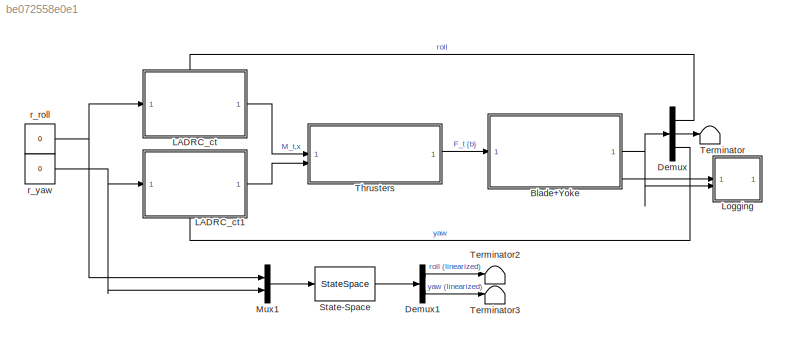
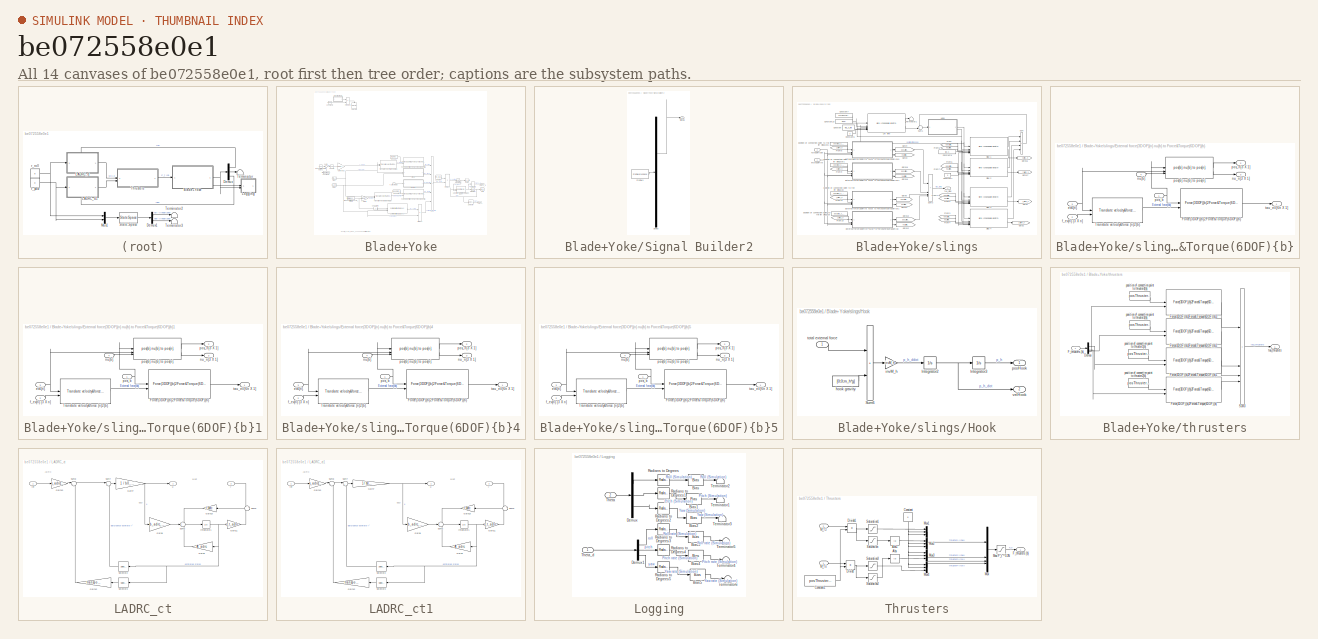
[diagram: thumbnail index - all 14 canvases of the model, root first then tree order]
MODEL slx_be072558e0e1
KIND model
CONFIG AbsTol = auto
CONFIG EnableMultiTasking = off
CONFIG FixedStep = auto
CONFIG MaxStep = 0.02
CONFIG MinStep = auto
CONFIG RelTol = 1e-3
CONFIG SampleTimeConstraint = Unconstrained
CONFIG SolverName = VariableStepAuto
CONFIG StartTime = 0.0
CONFIG StopTime = 100
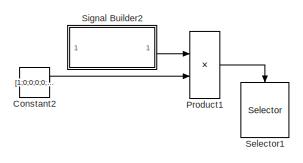
[diagram: Blade+Yoke - part 1/3, top left region]
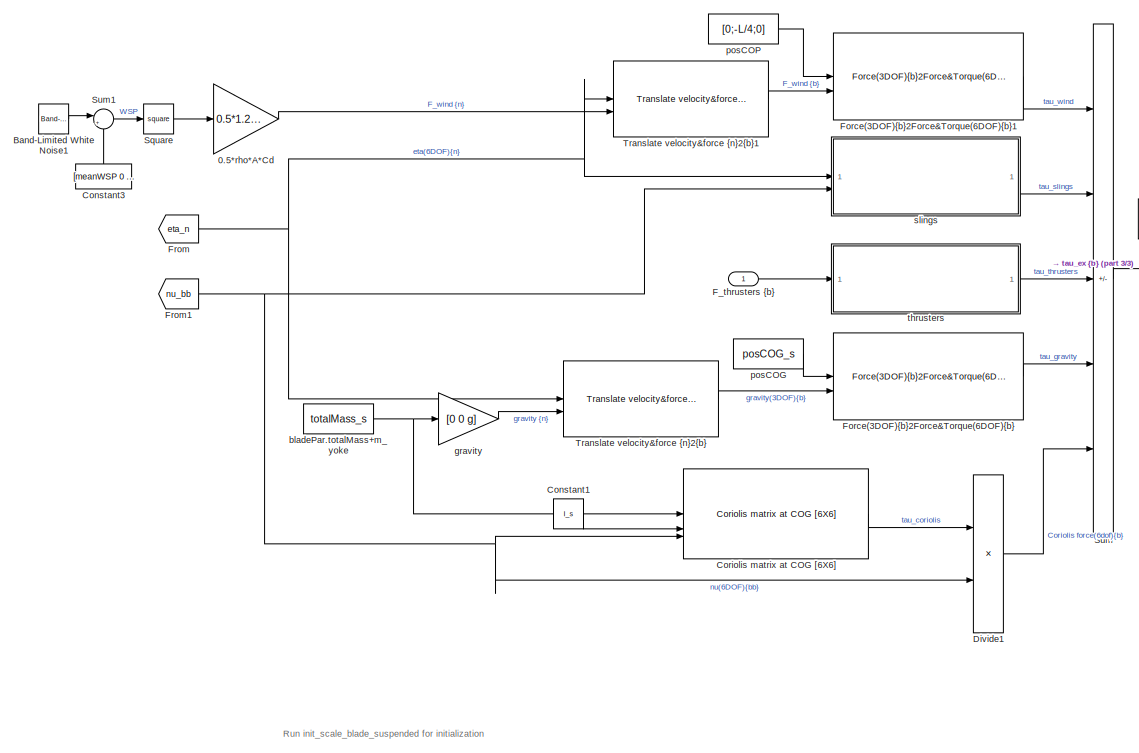
[diagram: Blade+Yoke - part 2/3, bottom center region]
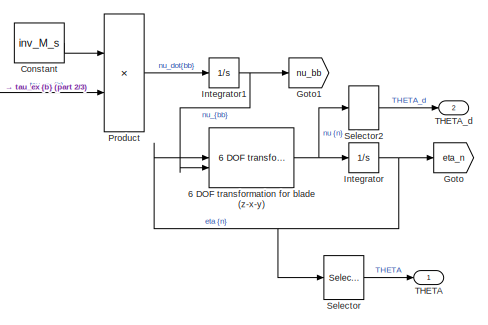
[diagram: Blade+Yoke - part 3/3, bottom right region]
BLOCK [SubSystem] Blade+Yoke
  ShowPortLabels = FromPortBlockName
BLOCK [Gain] Blade+Yoke/0.5*rho*A*Cd
  Gain = 0.5*1.225*W*L*1.05
BLOCK [Reference] Blade+Yoke/6 DOF transformation for blade (z-x-y)  REF=MarIn_blade/Basic functions/6 DOF transformation for blade
(z-x-y)
  SourceBlock = MarIn_blade/Basic functions/6 DOF transformation for blade\n(z-x-y)
  SourceProductName = MarIn (Blade)
  SourceType = 6 DOF transformation for blade (z-x-y)
BLOCK [Reference] Blade+Yoke/Band-Limited White Noise1  REF=simulink/Sources/Band-Limited
White Noise
  SourceBlock = simulink/Sources/Band-Limited\nWhite Noise
  SourceType = Band-Limited White Noise.
BLOCK [Constant] Blade+Yoke/Constant
  Value = inv_M_s
BLOCK [Constant] Blade+Yoke/Constant1
  Value = I_s
BLOCK [Constant] Blade+Yoke/Constant2
  Commented = on
  Value = [1;0;0;0;0;0]
BLOCK [Constant] Blade+Yoke/Constant3
  NameLocation = right
  Value = [meanWSP 0 0]
BLOCK [Reference] Blade+Yoke/Coriolis matrix at COG  [6X6]  REF=MarIn_blade/Basic functions/Coriolis matrix at COG  [6X6]
  SourceBlock = MarIn_blade/Basic functions/Coriolis matrix at COG  [6X6]
  SourceProductName = MarIn (Blade)
  SourceType = Mass matrix at COG[6X6]
BLOCK [Product] Blade+Yoke/Divide1
  Inputs = **
  Multiplication = Matrix(*)
BLOCK [Inport] Blade+Yoke/F_thrusters {b}
BLOCK [Reference] Blade+Yoke/Force(3DOF){b}2Force&Torque(6DOF){b}  REF=MarIn_blade/Basic functions/Force(3DOF){b}2Force&Torque(6DOF){b}
  SourceBlock = MarIn_blade/Basic functions/Force(3DOF){b}2Force&Torque(6DOF){b}
  SourceProductName = MarIn (Blade)
  SourceType = Force(3DOF){bb}2Force&Torque(6DOF){bb}
BLOCK [Reference] Blade+Yoke/Force(3DOF){b}2Force&Torque(6DOF){b}1  REF=MarIn_blade/Basic functions/Force(3DOF){b}2Force&Torque(6DOF){b}
  SourceBlock = MarIn_blade/Basic functions/Force(3DOF){b}2Force&Torque(6DOF){b}
  SourceProductName = MarIn (Blade)
  SourceType = Force(3DOF){bb}2Force&Torque(6DOF){bb}
BLOCK [From] Blade+Yoke/From
  GotoTag = eta_n
BLOCK [From] Blade+Yoke/From1
  GotoTag = nu_bb
BLOCK [Goto] Blade+Yoke/Goto
  GotoTag = eta_n
BLOCK [Goto] Blade+Yoke/Goto1
  GotoTag = nu_bb
BLOCK [Integrator] Blade+Yoke/Integrator
  ContinuousStateAttributes = 'eta_n'
  InitialCondition = eta_s_init_n
BLOCK [Integrator] Blade+Yoke/Integrator1 
  ContinuousStateAttributes = 'nu_b'
  InitialCondition = nu_s_init_b
BLOCK [Product] Blade+Yoke/Product
  Inputs = **
  Multiplication = Matrix(*)
BLOCK [Product] Blade+Yoke/Product1
  Commented = on
BLOCK [Selector] Blade+Yoke/Selector
  IndexOptions = Index vector (dialog)
  Indices = [4 5 6]
  InputPortWidth = 6
  OutputSizes = 1
BLOCK [Selector] Blade+Yoke/Selector1
  Commented = on
  IndexOptions = Index vector (dialog)
  Indices = [1 2 3]
  InputPortWidth = 6
  NameLocation = left
  OutputSizes = 1
BLOCK [Selector] Blade+Yoke/Selector2
  IndexOptions = Index vector (dialog)
  Indices = [4 5 6]
  InputPortWidth = 6
  OutputSizes = 1
BLOCK [SubSystem] Blade+Yoke/Signal Builder2
  ClipboardFcn = sigbuilder_block('clipboard');
  CloseFcn = sigbuilder_block('close');
  Commented = on
  ContinueFcn = sigbuilder_block('continue');
  CopyFcn = sigbuilder_block('copy');
  DeleteFcn = sigbuilder_block('delete');
  LoadFcn = sigbuilder_block('load');
  MaskHideContents = on
  ModelCloseFcn = sigbuilder_block('modelClose');
  NameChangeFcn = sigbuilder_block('namechange');
  OpenFcn = sigbuilder_block('open',[437.6 199.2 550.4 400 ]);
  PauseFcn = sigbuilder_block('pause');
  PreSaveFcn = sigbuilder_block('preSave');
  StartFcn = sigbuilder_block('start');
  StopFcn = sigbuilder_block('stop');
  Tag = STV Subsys
BLOCK [Demux] Blade+Yoke/Signal Builder2/Demux
  DisplayOption = none
  Outputs = 1
  Tag = STV Demux
BLOCK [FromWorkspace] Blade+Yoke/Signal Builder2/FromWs
  Tag = STV FromWs
  VariableName = tuvar
BLOCK [Outport] Blade+Yoke/Signal Builder2/Signal 1
  Tag = STV Outport
BLOCK [Math] Blade+Yoke/Square
  Operator = square
BLOCK [Sum] Blade+Yoke/Sum
  IconShape = rectangular
  Inputs = ++++-
BLOCK [Sum] Blade+Yoke/Sum1
  Inputs = |++
BLOCK [Outport] Blade+Yoke/THETA
BLOCK [Outport] Blade+Yoke/THETA_d
  Port = 2
BLOCK [Reference] Blade+Yoke/Translate velocity&force {n}2{b}  REF=MarIn_blade/Basic functions/Translate velocity&force {n}2{b}
  SourceBlock = MarIn_blade/Basic functions/Translate velocity&force {n}2{b}
  SourceProductName = MarIn (Blade)
  SourceType = Translate velocity&force {n}2{bb}
BLOCK [Reference] Blade+Yoke/Translate velocity&force {n}2{b}1  REF=MarIn_blade/Basic functions/Translate velocity&force {n}2{b}
  SourceBlock = MarIn_blade/Basic functions/Translate velocity&force {n}2{b}
  SourceProductName = MarIn (Blade)
  SourceType = Translate velocity&force {n}2{bb}
BLOCK [Constant] Blade+Yoke/bladePar.totalMass+m_yoke
  Value = totalMass_s
BLOCK [Gain] Blade+Yoke/gravity
  Gain = [0 0 g]
BLOCK [Constant] Blade+Yoke/posCOG
  Value = posCOG_s
BLOCK [Constant] Blade+Yoke/posCOP
  Value = [0;-L/4;0]
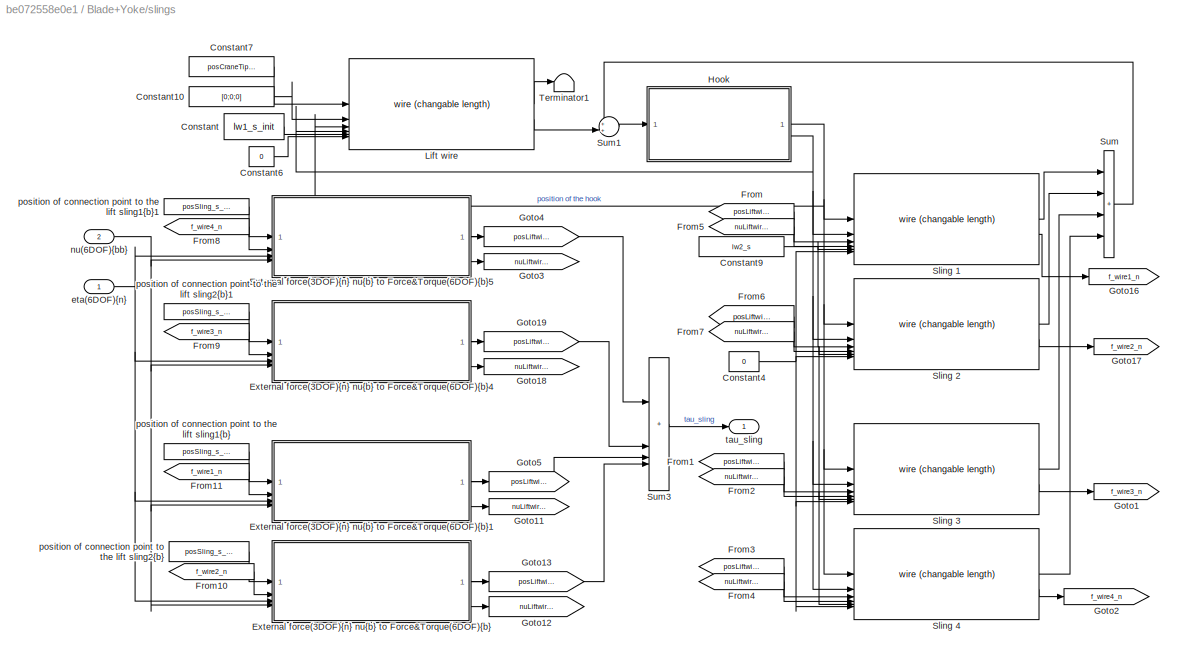
BLOCK [SubSystem] Blade+Yoke/slings
BLOCK [Constant] Blade+Yoke/slings/Constant
  Value = lw1_s_init
BLOCK [Constant] Blade+Yoke/slings/Constant10
  Value = [0;0;0]
BLOCK [Constant] Blade+Yoke/slings/Constant4
  Value = 0
BLOCK [Constant] Blade+Yoke/slings/Constant6
  Value = 0
BLOCK [Constant] Blade+Yoke/slings/Constant7
  Value = posCraneTip_s
BLOCK [Constant] Blade+Yoke/slings/Constant9
  Value = lw2_s
BLOCK [SubSystem] Blade+Yoke/slings/External force(3DOF){n} nu{b} to Force&Torque(6DOF){b}
  AncestorBlock = MarIn_blade/Basic functions/External force(3DOF){n} nu{b} to Force&Torque(6DOF){b}
BLOCK [Reference] Blade+Yoke/slings/External force(3DOF){n} nu{b} to Force&Torque(6DOF){b}/Force(3DOF){b}2Force&Torque(6DOF){b}  REF=MarIn_blade/Basic functions/Force(3DOF){b}2Force&Torque(6DOF){b}
  SourceBlock = MarIn_blade/Basic functions/Force(3DOF){b}2Force&Torque(6DOF){b}
  SourceProductName = MarIn (Blade)
  SourceType = Force(3DOF){bb}2Force&Torque(6DOF){bb}
BLOCK [Reference] Blade+Yoke/slings/External force(3DOF){n} nu{b} to Force&Torque(6DOF){b}/Translate velocity&force {n}2{b}  REF=MarIn_blade/Basic functions/Translate velocity&force {n}2{b}
  SourceBlock = MarIn_blade/Basic functions/Translate velocity&force {n}2{b}
  SourceProductName = MarIn (Blade)
  SourceType = Translate velocity&force {n}2{bb}
BLOCK [Inport] Blade+Yoke/slings/External force(3DOF){n} nu{b} to Force&Torque(6DOF){b}/eta{n}
  Port = 3
BLOCK [Inport] Blade+Yoke/slings/External force(3DOF){n} nu{b} to Force&Torque(6DOF){b}/f_ex{n} [3 X n]
  Port = 2
BLOCK [Outport] Blade+Yoke/slings/External force(3DOF){n} nu{b} to Force&Torque(6DOF){b}/nu_n[3 X 1]
  Port = 3
BLOCK [Inport] Blade+Yoke/slings/External force(3DOF){n} nu{b} to Force&Torque(6DOF){b}/nu{b}
  Port = 4
BLOCK [Inport] Blade+Yoke/slings/External force(3DOF){n} nu{b} to Force&Torque(6DOF){b}/pos_b
BLOCK [Outport] Blade+Yoke/slings/External force(3DOF){n} nu{b} to Force&Torque(6DOF){b}/pos_n[3 X 1]
  Port = 2
BLOCK [Reference] Blade+Yoke/slings/External force(3DOF){n} nu{b} to Force&Torque(6DOF){b}/pos{b} nu{b} to pos{n}  REF=MarIn_blade/Basic functions/pos{b} nu{b} to pos{n}
  SourceBlock = MarIn_blade/Basic functions/pos{b} nu{b} to pos{n}
  SourceProductName = MarIn (Blade)
  SourceType = pos{bb} to pos{bn} and pos{n}
BLOCK [Outport] Blade+Yoke/slings/External force(3DOF){n} nu{b} to Force&Torque(6DOF){b}/tau_ex [6n X 1]
BLOCK [SubSystem] Blade+Yoke/slings/External force(3DOF){n} nu{b} to Force&Torque(6DOF){b}1
  AncestorBlock = MarIn_blade/Basic functions/External force(3DOF){n} nu{b} to Force&Torque(6DOF){b}
BLOCK [Reference] Blade+Yoke/slings/External force(3DOF){n} nu{b} to Force&Torque(6DOF){b}1/Force(3DOF){b}2Force&Torque(6DOF){b}  REF=MarIn_blade/Basic functions/Force(3DOF){b}2Force&Torque(6DOF){b}
  SourceBlock = MarIn_blade/Basic functions/Force(3DOF){b}2Force&Torque(6DOF){b}
  SourceProductName = MarIn (Blade)
  SourceType = Force(3DOF){bb}2Force&Torque(6DOF){bb}
BLOCK [Reference] Blade+Yoke/slings/External force(3DOF){n} nu{b} to Force&Torque(6DOF){b}1/Translate velocity&force {n}2{b}  REF=MarIn_blade/Basic functions/Translate velocity&force {n}2{b}
  SourceBlock = MarIn_blade/Basic functions/Translate velocity&force {n}2{b}
  SourceProductName = MarIn (Blade)
  SourceType = Translate velocity&force {n}2{bb}
BLOCK [Inport] Blade+Yoke/slings/External force(3DOF){n} nu{b} to Force&Torque(6DOF){b}1/eta{n}
  Port = 3
BLOCK [Inport] Blade+Yoke/slings/External force(3DOF){n} nu{b} to Force&Torque(6DOF){b}1/f_ex{n} [3 X n]
  Port = 2
BLOCK [Outport] Blade+Yoke/slings/External force(3DOF){n} nu{b} to Force&Torque(6DOF){b}1/nu_n[3 X 1]
  Port = 3
BLOCK [Inport] Blade+Yoke/slings/External force(3DOF){n} nu{b} to Force&Torque(6DOF){b}1/nu{b}
  Port = 4
BLOCK [Inport] Blade+Yoke/slings/External force(3DOF){n} nu{b} to Force&Torque(6DOF){b}1/pos_b
BLOCK [Outport] Blade+Yoke/slings/External force(3DOF){n} nu{b} to Force&Torque(6DOF){b}1/pos_n[3 X 1]
  Port = 2
BLOCK [Reference] Blade+Yoke/slings/External force(3DOF){n} nu{b} to Force&Torque(6DOF){b}1/pos{b} nu{b} to pos{n}  REF=MarIn_blade/Basic functions/pos{b} nu{b} to pos{n}
  SourceBlock = MarIn_blade/Basic functions/pos{b} nu{b} to pos{n}
  SourceProductName = MarIn (Blade)
  SourceType = pos{bb} to pos{bn} and pos{n}
BLOCK [Outport] Blade+Yoke/slings/External force(3DOF){n} nu{b} to Force&Torque(6DOF){b}1/tau_ex [6n X 1]
BLOCK [SubSystem] Blade+Yoke/slings/External force(3DOF){n} nu{b} to Force&Torque(6DOF){b}4
  AncestorBlock = MarIn_blade/Basic functions/External force(3DOF){n} nu{b} to Force&Torque(6DOF){b}
BLOCK [Reference] Blade+Yoke/slings/External force(3DOF){n} nu{b} to Force&Torque(6DOF){b}4/Force(3DOF){b}2Force&Torque(6DOF){b}  REF=MarIn_blade/Basic functions/Force(3DOF){b}2Force&Torque(6DOF){b}
  SourceBlock = MarIn_blade/Basic functions/Force(3DOF){b}2Force&Torque(6DOF){b}
  SourceProductName = MarIn (Blade)
  SourceType = Force(3DOF){bb}2Force&Torque(6DOF){bb}
BLOCK [Reference] Blade+Yoke/slings/External force(3DOF){n} nu{b} to Force&Torque(6DOF){b}4/Translate velocity&force {n}2{b}  REF=MarIn_blade/Basic functions/Translate velocity&force {n}2{b}
  SourceBlock = MarIn_blade/Basic functions/Translate velocity&force {n}2{b}
  SourceProductName = MarIn (Blade)
  SourceType = Translate velocity&force {n}2{bb}
BLOCK [Inport] Blade+Yoke/slings/External force(3DOF){n} nu{b} to Force&Torque(6DOF){b}4/eta{n}
  Port = 3
BLOCK [Inport] Blade+Yoke/slings/External force(3DOF){n} nu{b} to Force&Torque(6DOF){b}4/f_ex{n} [3 X n]
  Port = 2
BLOCK [Outport] Blade+Yoke/slings/External force(3DOF){n} nu{b} to Force&Torque(6DOF){b}4/nu_n[3 X 1]
  Port = 3
BLOCK [Inport] Blade+Yoke/slings/External force(3DOF){n} nu{b} to Force&Torque(6DOF){b}4/nu{b}
  Port = 4
BLOCK [Inport] Blade+Yoke/slings/External force(3DOF){n} nu{b} to Force&Torque(6DOF){b}4/pos_b
BLOCK [Outport] Blade+Yoke/slings/External force(3DOF){n} nu{b} to Force&Torque(6DOF){b}4/pos_n[3 X 1]
  Port = 2
BLOCK [Reference] Blade+Yoke/slings/External force(3DOF){n} nu{b} to Force&Torque(6DOF){b}4/pos{b} nu{b} to pos{n}  REF=MarIn_blade/Basic functions/pos{b} nu{b} to pos{n}
  SourceBlock = MarIn_blade/Basic functions/pos{b} nu{b} to pos{n}
  SourceProductName = MarIn (Blade)
  SourceType = pos{bb} to pos{bn} and pos{n}
BLOCK [Outport] Blade+Yoke/slings/External force(3DOF){n} nu{b} to Force&Torque(6DOF){b}4/tau_ex [6n X 1]
BLOCK [SubSystem] Blade+Yoke/slings/External force(3DOF){n} nu{b} to Force&Torque(6DOF){b}5
  AncestorBlock = MarIn_blade/Basic functions/External force(3DOF){n} nu{b} to Force&Torque(6DOF){b}
BLOCK [Reference] Blade+Yoke/slings/External force(3DOF){n} nu{b} to Force&Torque(6DOF){b}5/Force(3DOF){b}2Force&Torque(6DOF){b}  REF=MarIn_blade/Basic functions/Force(3DOF){b}2Force&Torque(6DOF){b}
  SourceBlock = MarIn_blade/Basic functions/Force(3DOF){b}2Force&Torque(6DOF){b}
  SourceProductName = MarIn (Blade)
  SourceType = Force(3DOF){bb}2Force&Torque(6DOF){bb}
BLOCK [Reference] Blade+Yoke/slings/External force(3DOF){n} nu{b} to Force&Torque(6DOF){b}5/Translate velocity&force {n}2{b}  REF=MarIn_blade/Basic functions/Translate velocity&force {n}2{b}
  SourceBlock = MarIn_blade/Basic functions/Translate velocity&force {n}2{b}
  SourceProductName = MarIn (Blade)
  SourceType = Translate velocity&force {n}2{bb}
BLOCK [Inport] Blade+Yoke/slings/External force(3DOF){n} nu{b} to Force&Torque(6DOF){b}5/eta{n}
  Port = 3
BLOCK [Inport] Blade+Yoke/slings/External force(3DOF){n} nu{b} to Force&Torque(6DOF){b}5/f_ex{n} [3 X n]
  Port = 2
BLOCK [Outport] Blade+Yoke/slings/External force(3DOF){n} nu{b} to Force&Torque(6DOF){b}5/nu_n[3 X 1]
  Port = 3
BLOCK [Inport] Blade+Yoke/slings/External force(3DOF){n} nu{b} to Force&Torque(6DOF){b}5/nu{b}
  Port = 4
BLOCK [Inport] Blade+Yoke/slings/External force(3DOF){n} nu{b} to Force&Torque(6DOF){b}5/pos_b
BLOCK [Outport] Blade+Yoke/slings/External force(3DOF){n} nu{b} to Force&Torque(6DOF){b}5/pos_n[3 X 1]
  Port = 2
BLOCK [Reference] Blade+Yoke/slings/External force(3DOF){n} nu{b} to Force&Torque(6DOF){b}5/pos{b} nu{b} to pos{n}  REF=MarIn_blade/Basic functions/pos{b} nu{b} to pos{n}
  SourceBlock = MarIn_blade/Basic functions/pos{b} nu{b} to pos{n}
  SourceProductName = MarIn (Blade)
  SourceType = pos{bb} to pos{bn} and pos{n}
BLOCK [Outport] Blade+Yoke/slings/External force(3DOF){n} nu{b} to Force&Torque(6DOF){b}5/tau_ex [6n X 1]
BLOCK [From] Blade+Yoke/slings/From
  GotoTag = posLiftwire1_n
BLOCK [From] Blade+Yoke/slings/From1
  GotoTag = posLiftwire3_n
BLOCK [From] Blade+Yoke/slings/From10
  GotoTag = f_wire2_n
BLOCK [From] Blade+Yoke/slings/From11
  GotoTag = f_wire1_n
BLOCK [From] Blade+Yoke/slings/From2
  GotoTag = nuLiftwire3_n
BLOCK [From] Blade+Yoke/slings/From3
  GotoTag = posLiftwire4_n
BLOCK [From] Blade+Yoke/slings/From4
  GotoTag = nuLiftwire4_n
BLOCK [From] Blade+Yoke/slings/From5
  GotoTag = nuLiftwire1_n
BLOCK [From] Blade+Yoke/slings/From6
  GotoTag = posLiftwire2_n
BLOCK [From] Blade+Yoke/slings/From7
  GotoTag = nuLiftwire2_n
BLOCK [From] Blade+Yoke/slings/From8
  GotoTag = f_wire4_n
BLOCK [From] Blade+Yoke/slings/From9
  GotoTag = f_wire3_n
BLOCK [Goto] Blade+Yoke/slings/Goto1
  GotoTag = f_wire3_n
BLOCK [Goto] Blade+Yoke/slings/Goto11
  GotoTag = nuLiftwire1_n
BLOCK [Goto] Blade+Yoke/slings/Goto12
  GotoTag = nuLiftwire2_n
BLOCK [Goto] Blade+Yoke/slings/Goto13
  GotoTag = posLiftwire2_n
BLOCK [Goto] Blade+Yoke/slings/Goto16
  GotoTag = f_wire1_n
BLOCK [Goto] Blade+Yoke/slings/Goto17
  GotoTag = f_wire2_n
BLOCK [Goto] Blade+Yoke/slings/Goto18
  GotoTag = nuLiftwire3_n
BLOCK [Goto] Blade+Yoke/slings/Goto19
  GotoTag = posLiftwire3_n
BLOCK [Goto] Blade+Yoke/slings/Goto2
  GotoTag = f_wire4_n
BLOCK [Goto] Blade+Yoke/slings/Goto3
  GotoTag = nuLiftwire4_n
BLOCK [Goto] Blade+Yoke/slings/Goto4
  GotoTag = posLiftwire4_n
BLOCK [Goto] Blade+Yoke/slings/Goto5
  GotoTag = posLiftwire1_n
BLOCK [SubSystem] Blade+Yoke/slings/Hook
  AncestorBlock = MarIn_blade/Lifting equipments\n(winch, wire, hook)/Hook
BLOCK [Integrator] Blade+Yoke/slings/Hook/Integrator2
  ContinuousStateAttributes = 'nu_hook'
  InitialCondition = p_h_dot_init
BLOCK [Integrator] Blade+Yoke/slings/Hook/Integrator3
  ContinuousStateAttributes = 'pos_hook'
  InitialCondition = p_h_init
BLOCK [Sum] Blade+Yoke/slings/Hook/Sum6
  IconShape = rectangular
BLOCK [Constant] Blade+Yoke/slings/Hook/hook gravity
  Value = [0;0;m_h*g]
BLOCK [Gain] Blade+Yoke/slings/Hook/invM_h
  Gain = invM_h
  Multiplication = Matrix(K*u)
BLOCK [Outport] Blade+Yoke/slings/Hook/posHook
BLOCK [Inport] Blade+Yoke/slings/Hook/total external force
BLOCK [Outport] Blade+Yoke/slings/Hook/velHook
  Port = 2
BLOCK [Reference] Blade+Yoke/slings/Lift wire  REF=MarIn_blade/Lifting equipments
(winch, wire, hook)/wire (changable length)
  SourceBlock = MarIn_blade/Lifting equipments\n(winch, wire, hook)/wire (changable length)
  SourceProductName = MarIn (Blade)
  SourceType = Wire
BLOCK [Reference] Blade+Yoke/slings/Sling 1  REF=MarIn_blade/Lifting equipments
(winch, wire, hook)/wire (changable length)
  SourceBlock = MarIn_blade/Lifting equipments\n(winch, wire, hook)/wire (changable length)
  SourceProductName = MarIn (Blade)
  SourceType = Wire
BLOCK [Reference] Blade+Yoke/slings/Sling 2  REF=MarIn_blade/Lifting equipments
(winch, wire, hook)/wire (changable length)
  SourceBlock = MarIn_blade/Lifting equipments\n(winch, wire, hook)/wire (changable length)
  SourceProductName = MarIn (Blade)
  SourceType = Wire
BLOCK [Reference] Blade+Yoke/slings/Sling 3  REF=MarIn_blade/Lifting equipments
(winch, wire, hook)/wire (changable length)
  SourceBlock = MarIn_blade/Lifting equipments\n(winch, wire, hook)/wire (changable length)
  SourceProductName = MarIn (Blade)
  SourceType = Wire
BLOCK [Reference] Blade+Yoke/slings/Sling 4  REF=MarIn_blade/Lifting equipments
(winch, wire, hook)/wire (changable length)
  SourceBlock = MarIn_blade/Lifting equipments\n(winch, wire, hook)/wire (changable length)
  SourceProductName = MarIn (Blade)
  SourceType = Wire
BLOCK [Sum] Blade+Yoke/slings/Sum
  IconShape = rectangular
  Inputs = ++++
BLOCK [Sum] Blade+Yoke/slings/Sum1
  Inputs = ++|
BLOCK [Sum] Blade+Yoke/slings/Sum3
  IconShape = rectangular
  Inputs = 4
BLOCK [Terminator] Blade+Yoke/slings/Terminator1
BLOCK [Inport] Blade+Yoke/slings/eta(6DOF){n}
BLOCK [Inport] Blade+Yoke/slings/nu(6DOF){bb}
  Port = 2
BLOCK [Constant] Blade+Yoke/slings/position of connection point to the lift sling1{b}
  NameLocation = top
  Value = posSling_s_b(:,1)
BLOCK [Constant] Blade+Yoke/slings/position of connection point to the lift sling1{b}1
  NameLocation = top
  Value = posSling_s_b(:,4)
BLOCK [Constant] Blade+Yoke/slings/position of connection point to the lift sling2{b}
  NameLocation = top
  Value = posSling_s_b(:,2)
BLOCK [Constant] Blade+Yoke/slings/position of connection point to the lift sling2{b}1
  NameLocation = top
  Value = posSling_s_b(:,3)
BLOCK [Outport] Blade+Yoke/slings/tau_sling
BLOCK [SubSystem] Blade+Yoke/thrusters
BLOCK [Demux] Blade+Yoke/thrusters/Demux
BLOCK [Inport] Blade+Yoke/thrusters/F_thrusters {b}
BLOCK [Reference] Blade+Yoke/thrusters/Force(3DOF){b}2Force&Torque(6DOF){b}  REF=MarIn_blade/Basic functions/Force(3DOF){b}2Force&Torque(6DOF){b}
  SourceBlock = MarIn_blade/Basic functions/Force(3DOF){b}2Force&Torque(6DOF){b}
  SourceProductName = MarIn (Blade)
  SourceType = Force(3DOF){bb}2Force&Torque(6DOF){bb}
BLOCK [Reference] Blade+Yoke/thrusters/Force(3DOF){b}2Force&Torque(6DOF){b}1  REF=MarIn_blade/Basic functions/Force(3DOF){b}2Force&Torque(6DOF){b}
  SourceBlock = MarIn_blade/Basic functions/Force(3DOF){b}2Force&Torque(6DOF){b}
  SourceProductName = MarIn (Blade)
  SourceType = Force(3DOF){bb}2Force&Torque(6DOF){bb}
BLOCK [Reference] Blade+Yoke/thrusters/Force(3DOF){b}2Force&Torque(6DOF){b}2  REF=MarIn_blade/Basic functions/Force(3DOF){b}2Force&Torque(6DOF){b}
  SourceBlock = MarIn_blade/Basic functions/Force(3DOF){b}2Force&Torque(6DOF){b}
  SourceProductName = MarIn (Blade)
  SourceType = Force(3DOF){bb}2Force&Torque(6DOF){bb}
BLOCK [Reference] Blade+Yoke/thrusters/Force(3DOF){b}2Force&Torque(6DOF){b}3  REF=MarIn_blade/Basic functions/Force(3DOF){b}2Force&Torque(6DOF){b}
  SourceBlock = MarIn_blade/Basic functions/Force(3DOF){b}2Force&Torque(6DOF){b}
  SourceProductName = MarIn (Blade)
  SourceType = Force(3DOF){bb}2Force&Torque(6DOF){bb}
BLOCK [Sum] Blade+Yoke/thrusters/Sum3
  IconShape = rectangular
  Inputs = 4
BLOCK [Constant] Blade+Yoke/thrusters/position of connection point to thruster1{b}
  NameLocation = top
  Value = posThruster_s_b(:,1)
BLOCK [Constant] Blade+Yoke/thrusters/position of connection point to thruster2{b}
  NameLocation = top
  Value = posThruster_s_b(:,2)
BLOCK [Constant] Blade+Yoke/thrusters/position of connection point to thruster3{b}
  NameLocation = top
  Value = posThruster_s_b(:,3)
BLOCK [Constant] Blade+Yoke/thrusters/position of connection point to thruster4{b}
  NameLocation = top
  Value = posThruster_s_b(:,4)
BLOCK [Outport] Blade+Yoke/thrusters/tau_thrusters
BLOCK [Demux] Demux
  Outputs = 3
BLOCK [Demux] Demux1
  Outputs = 2
BLOCK [SubSystem] LADRC_ct
  PortSchema = {"entries":[{"content":{"sides":[{"content":{"connectorIds":["In1"]},"type":"ConnectorPlacement.EquallySpacedRectSide","uuid":"1d520aa3-92ac-435b-91ed-fc26ef221564"},{"content":{"connectorIds":["Out1"],"side":"RIGHT"},"type":"ConnectorPlacement.EquallySpacedRectSide","uuid":"34654b5a-6fa4-4dd6-9109-9eab0d6d1617"},{"content":{"connectorIds":["In2"],"side":"TOP"},"type":"ConnectorPlacement.EquallySp...<+371ch>
BLOCK [Gain] LADRC_ct/Gain10
  Gain = l_adrc
  NameLocation = top
BLOCK [Gain] LADRC_ct/Gain11
  Gain = c_t_adrc
  Multiplication = Matrix(K*u)
BLOCK [Gain] LADRC_ct/Gain12
  Gain = transpose(k_adrc)
  Multiplication = Matrix(K*u)
  NameLocation = top
BLOCK [Gain] LADRC_ct/Gain13
  Gain = k_adrc(1)
BLOCK [Gain] LADRC_ct/Gain7
  Gain = 1 / b0_adrc_roll
BLOCK [Gain] LADRC_ct/Gain8
  Gain = b_adrc_roll
  Multiplication = Matrix(K*u)
BLOCK [Gain] LADRC_ct/Gain9
  Gain = A_adrc
  Multiplication = Matrix(K*u)
  NameLocation = top
BLOCK [Integrator] LADRC_ct/Integrator1
BLOCK [Selector] LADRC_ct/Selector2
  IndexOptions = Index vector (dialog)
  Indices = [N_adrc+1]
  InputPortWidth = N_adrc+1
  NameLocation = top
  OutputSizes = 1
BLOCK [Selector] LADRC_ct/Selector3
  IndexOptions = Index vector (dialog)
  Indices = [1:N_adrc]
  InputPortWidth = N_adrc+1
  NameLocation = top
  OutputSizes = 1
BLOCK [Sum] LADRC_ct/Sum5
  Inputs = +++
BLOCK [Sum] LADRC_ct/Sum6
  Inputs = +|-
  NameLocation = top
BLOCK [Sum] LADRC_ct/Sum7
  Inputs = |+-
BLOCK [Sum] LADRC_ct/Sum8
  Inputs = |+-
BLOCK [Inport] LADRC_ct/ref
BLOCK [Outport] LADRC_ct/u
BLOCK [Inport] LADRC_ct/y
  Port = 2
BLOCK [SubSystem] LADRC_ct1
  PortSchema = {"entries":[{"content":{"sides":[{"content":{"connectorIds":["In1"]},"type":"ConnectorPlacement.EquallySpacedRectSide","uuid":"1d520aa3-92ac-435b-91ed-fc26ef221564"},{"content":{"connectorIds":["Out1"],"side":"RIGHT"},"type":"ConnectorPlacement.EquallySpacedRectSide","uuid":"34654b5a-6fa4-4dd6-9109-9eab0d6d1617"},{"content":{"side":"TOP"},"type":"ConnectorPlacement.EquallySpacedRectSide","uuid":"3...<+371ch>
BLOCK [Gain] LADRC_ct1/Gain10
  Gain = l_adrc
  NameLocation = top
BLOCK [Gain] LADRC_ct1/Gain11
  Gain = c_t_adrc
  Multiplication = Matrix(K*u)
BLOCK [Gain] LADRC_ct1/Gain12
  Gain = transpose(k_adrc)
  Multiplication = Matrix(K*u)
  NameLocation = top
BLOCK [Gain] LADRC_ct1/Gain13
  Gain = k_adrc(1)
BLOCK [Gain] LADRC_ct1/Gain7
  Gain = 1 / b0_adrc_yaw
BLOCK [Gain] LADRC_ct1/Gain8
  Gain = b_adrc_yaw
  Multiplication = Matrix(K*u)
BLOCK [Gain] LADRC_ct1/Gain9
  Gain = A_adrc
  Multiplication = Matrix(K*u)
  NameLocation = top
BLOCK [Integrator] LADRC_ct1/Integrator1
BLOCK [Selector] LADRC_ct1/Selector2
  IndexOptions = Index vector (dialog)
  Indices = [N_adrc+1]
  InputPortWidth = N_adrc+1
  NameLocation = top
  OutputSizes = 1
BLOCK [Selector] LADRC_ct1/Selector3
  IndexOptions = Index vector (dialog)
  Indices = [1:N_adrc]
  InputPortWidth = N_adrc+1
  NameLocation = top
  OutputSizes = 1
BLOCK [Sum] LADRC_ct1/Sum5
  Inputs = +++
BLOCK [Sum] LADRC_ct1/Sum6
  Inputs = +|-
  NameLocation = top
BLOCK [Sum] LADRC_ct1/Sum7
  Inputs = |+-
BLOCK [Sum] LADRC_ct1/Sum8
  Inputs = |+-
BLOCK [Inport] LADRC_ct1/ref
BLOCK [Outport] LADRC_ct1/u
BLOCK [Inport] LADRC_ct1/y
  Port = 2
BLOCK [SubSystem] Logging
BLOCK [Bias] Logging/Bias
  Bias = -1.1
  Commented = through
  SaturateOnIntegerOverflow = off
BLOCK [Bias] Logging/Bias1
  Bias = -0.6
  Commented = through
  SaturateOnIntegerOverflow = off
BLOCK [Bias] Logging/Bias2
  Bias = -102.2
  Commented = through
  SaturateOnIntegerOverflow = off
BLOCK [Bias] Logging/Bias3
  Commented = through
  SaturateOnIntegerOverflow = off
BLOCK [Bias] Logging/Bias4
  Commented = through
  SaturateOnIntegerOverflow = off
BLOCK [Bias] Logging/Bias5
  Bias = -0.7
  Commented = through
  SaturateOnIntegerOverflow = off
BLOCK [Demux] Logging/Demux
  Outputs = 3
BLOCK [Demux] Logging/Demux1
  Outputs = 3
BLOCK [Reference] Logging/Radians to Degrees  REF=simulink_extras/Transformations/Radians
to Degrees
  SourceBlock = simulink_extras/Transformations/Radians\nto Degrees
  SourceType = RadiansToDegrees
BLOCK [Reference] Logging/Radians to Degrees1  REF=simulink_extras/Transformations/Radians
to Degrees
  SourceBlock = simulink_extras/Transformations/Radians\nto Degrees
  SourceType = RadiansToDegrees
BLOCK [Reference] Logging/Radians to Degrees2  REF=simulink_extras/Transformations/Radians
to Degrees
  SourceBlock = simulink_extras/Transformations/Radians\nto Degrees
  SourceType = RadiansToDegrees
BLOCK [Reference] Logging/Radians to Degrees3  REF=simulink_extras/Transformations/Radians
to Degrees
  SourceBlock = simulink_extras/Transformations/Radians\nto Degrees
  SourceType = RadiansToDegrees
BLOCK [Reference] Logging/Radians to Degrees4  REF=simulink_extras/Transformations/Radians
to Degrees
  SourceBlock = simulink_extras/Transformations/Radians\nto Degrees
  SourceType = RadiansToDegrees
BLOCK [Reference] Logging/Radians to Degrees5  REF=simulink_extras/Transformations/Radians
to Degrees
  SourceBlock = simulink_extras/Transformations/Radians\nto Degrees
  SourceType = RadiansToDegrees
BLOCK [Terminator] Logging/Terminator1
BLOCK [Terminator] Logging/Terminator2
BLOCK [Terminator] Logging/Terminator3
BLOCK [Terminator] Logging/Terminator4
BLOCK [Terminator] Logging/Terminator5
BLOCK [Terminator] Logging/Terminator6
BLOCK [Inport] Logging/Theta
  Port = 2
BLOCK [Inport] Logging/Theta_d
BLOCK [Mux] Mux1
  DisplayOption = bar
  Inputs = 2
BLOCK [StateSpace] State-Space
  A = linsys_v2.A
  B = linsys_v2.B
  C = linsys_v2.C
  Commented = on
  D = linsys_v2.D
  InitialCondition = 0
BLOCK [Terminator] Terminator
BLOCK [Terminator] Terminator2
BLOCK [Terminator] Terminator3
BLOCK [SubSystem] Thrusters
BLOCK [Abs] Thrusters/Abs
  SaturateOnIntegerOverflow = off
BLOCK [Abs] Thrusters/Abs1
  SaturateOnIntegerOverflow = off
BLOCK [Constant] Thrusters/Constant
  NameLocation = left
  Value = 0
BLOCK [Constant] Thrusters/Constant1
  Value = posThruster_s_b(2,2)
BLOCK [Product] Thrusters/Divide
  Inputs = */
BLOCK [Product] Thrusters/Divide1
  Inputs = */
BLOCK [Outport] Thrusters/F_thrusters {b}
BLOCK [Inport] Thrusters/M_Tx
BLOCK [Inport] Thrusters/M_Tz
  Port = 2
BLOCK [Saturate] Thrusters/Max F_t ~0.3N
  LinearizeAsGain = off
  LowerLimit = -0.076
  UpperLimit = 0.076
BLOCK [Mux] Thrusters/Mux
  DisplayOption = bar
BLOCK [Mux] Thrusters/Mux1
  DisplayOption = bar
  Inputs = 3
BLOCK [Mux] Thrusters/Mux2
  DisplayOption = bar
  Inputs = 3
BLOCK [Mux] Thrusters/Mux3
  DisplayOption = bar
  Inputs = 3
BLOCK [Mux] Thrusters/Mux4
  DisplayOption = bar
  Inputs = 3
BLOCK [Saturate] Thrusters/Saturation
  LowerLimit = -inf
  UpperLimit = 0
BLOCK [Saturate] Thrusters/Saturation1
  LowerLimit = 0
  UpperLimit = inf
BLOCK [Saturate] Thrusters/Saturation2
  LowerLimit = -inf
  UpperLimit = 0
BLOCK [Saturate] Thrusters/Saturation3
  LowerLimit = 0
  UpperLimit = inf
BLOCK [Constant] r_roll
  Value = 0
BLOCK [Constant] r_yaw
  Value = 0
ANNOTATION Blade+Yoke: Run init_scale_blade_suspended for initialization
ANNOTATION LADRC_ct: plant
ANNOTATION LADRC_ct: ADRC
ANNOTATION LADRC_ct: ESO
ANNOTATION LADRC_ct1: plant
ANNOTATION LADRC_ct1: ADRC
ANNOTATION LADRC_ct1: ESO
LINE Blade+Yoke/0.5*rho*A*Cd:1 -> Blade+Yoke/Translate velocity&force {n}2{b}1:2
NET Blade+Yoke/6 DOF transformation for blade (z-x-y):1 -> Blade+Yoke/Integrator:1, Blade+Yoke/Selector2:1
LINE Blade+Yoke/Band-Limited White Noise1:1 -> Blade+Yoke/Sum1:1
LINE Blade+Yoke/Constant1:1 -> Blade+Yoke/Coriolis matrix at COG  [6X6]:2
LINE Blade+Yoke/Constant2:1 -> Blade+Yoke/Product1:2
LINE Blade+Yoke/Constant3:1 -> Blade+Yoke/Sum1:2
LINE Blade+Yoke/Constant:1 -> Blade+Yoke/Product:1
LINE Blade+Yoke/Coriolis matrix at COG  [6X6]:1 -> Blade+Yoke/Divide1:1
LINE Blade+Yoke/Divide1:1 -> Blade+Yoke/Sum:5
LINE Blade+Yoke/F_thrusters {b}:1 -> Blade+Yoke/thrusters:1
LINE Blade+Yoke/Force(3DOF){b}2Force&Torque(6DOF){b}1:1 -> Blade+Yoke/Sum:1
LINE Blade+Yoke/Force(3DOF){b}2Force&Torque(6DOF){b}:1 -> Blade+Yoke/Sum:4
NET Blade+Yoke/From1:1 -> Blade+Yoke/Coriolis matrix at COG  [6X6]:3, Blade+Yoke/Divide1:2, Blade+Yoke/slings:2
NET Blade+Yoke/From:1 -> Blade+Yoke/Translate velocity&force {n}2{b}1:1, Blade+Yoke/Translate velocity&force {n}2{b}:1, Blade+Yoke/slings:1
NET Blade+Yoke/Integrator1 :1 -> Blade+Yoke/6 DOF transformation for blade (z-x-y):2, Blade+Yoke/Goto1:1
NET Blade+Yoke/Integrator:1 -> Blade+Yoke/6 DOF transformation for blade (z-x-y):1, Blade+Yoke/Goto:1, Blade+Yoke/Selector:1
LINE Blade+Yoke/Product1:1 -> Blade+Yoke/Selector1:1
LINE Blade+Yoke/Product:1 -> Blade+Yoke/Integrator1 :1
LINE Blade+Yoke/Selector2:1 -> Blade+Yoke/THETA_d:1
LINE Blade+Yoke/Selector:1 -> Blade+Yoke/THETA:1
LINE Blade+Yoke/Signal Builder2:1 -> Blade+Yoke/Product1:1
LINE Blade+Yoke/Square:1 -> Blade+Yoke/0.5*rho*A*Cd:1
LINE Blade+Yoke/Sum1:1 -> Blade+Yoke/Square:1
LINE Blade+Yoke/Sum:1 -> Blade+Yoke/Product:2
LINE Blade+Yoke/Translate velocity&force {n}2{b}1:1 -> Blade+Yoke/Force(3DOF){b}2Force&Torque(6DOF){b}1:2
LINE Blade+Yoke/Translate velocity&force {n}2{b}:1 -> Blade+Yoke/Force(3DOF){b}2Force&Torque(6DOF){b}:2
NET Blade+Yoke/bladePar.totalMass+m_yoke:1 -> Blade+Yoke/Coriolis matrix at COG  [6X6]:1, Blade+Yoke/gravity:1
LINE Blade+Yoke/gravity:1 -> Blade+Yoke/Translate velocity&force {n}2{b}:2
LINE Blade+Yoke/posCOG:1 -> Blade+Yoke/Force(3DOF){b}2Force&Torque(6DOF){b}:1
LINE Blade+Yoke/posCOP:1 -> Blade+Yoke/Force(3DOF){b}2Force&Torque(6DOF){b}1:1
LINE Blade+Yoke/slings/Constant10:1 -> Blade+Yoke/slings/Lift wire:2
NET Blade+Yoke/slings/Constant4:1 -> Blade+Yoke/slings/Sling 1:6, Blade+Yoke/slings/Sling 2:6, Blade+Yoke/slings/Sling 3:6, Blade+Yoke/slings/Sling 4:6
LINE Blade+Yoke/slings/Constant6:1 -> Blade+Yoke/slings/Lift wire:6
LINE Blade+Yoke/slings/Constant7:1 -> Blade+Yoke/slings/Lift wire:1
NET Blade+Yoke/slings/Constant9:1 -> Blade+Yoke/slings/Sling 1:5, Blade+Yoke/slings/Sling 2:5, Blade+Yoke/slings/Sling 3:5, Blade+Yoke/slings/Sling 4:5
LINE Blade+Yoke/slings/Constant:1 -> Blade+Yoke/slings/Lift wire:5
LINE Blade+Yoke/slings/External force(3DOF){n} nu{b} to Force&Torque(6DOF){b}1:1 -> Blade+Yoke/slings/Sum3:3
LINE Blade+Yoke/slings/External force(3DOF){n} nu{b} to Force&Torque(6DOF){b}1:2 -> Blade+Yoke/slings/Goto5:1
LINE Blade+Yoke/slings/External force(3DOF){n} nu{b} to Force&Torque(6DOF){b}1:3 -> Blade+Yoke/slings/Goto11:1
LINE Blade+Yoke/slings/External force(3DOF){n} nu{b} to Force&Torque(6DOF){b}4:1 -> Blade+Yoke/slings/Sum3:2
LINE Blade+Yoke/slings/External force(3DOF){n} nu{b} to Force&Torque(6DOF){b}4:2 -> Blade+Yoke/slings/Goto19:1
LINE Blade+Yoke/slings/External force(3DOF){n} nu{b} to Force&Torque(6DOF){b}4:3 -> Blade+Yoke/slings/Goto18:1
LINE Blade+Yoke/slings/External force(3DOF){n} nu{b} to Force&Torque(6DOF){b}5:1 -> Blade+Yoke/slings/Sum3:1
LINE Blade+Yoke/slings/External force(3DOF){n} nu{b} to Force&Torque(6DOF){b}5:2 -> Blade+Yoke/slings/Goto4:1
LINE Blade+Yoke/slings/External force(3DOF){n} nu{b} to Force&Torque(6DOF){b}5:3 -> Blade+Yoke/slings/Goto3:1
LINE Blade+Yoke/slings/External force(3DOF){n} nu{b} to Force&Torque(6DOF){b}:1 -> Blade+Yoke/slings/Sum3:4
LINE Blade+Yoke/slings/External force(3DOF){n} nu{b} to Force&Torque(6DOF){b}:2 -> Blade+Yoke/slings/Goto13:1
LINE Blade+Yoke/slings/External force(3DOF){n} nu{b} to Force&Torque(6DOF){b}:3 -> Blade+Yoke/slings/Goto12:1
LINE Blade+Yoke/slings/From10:1 -> Blade+Yoke/slings/External force(3DOF){n} nu{b} to Force&Torque(6DOF){b}:2
LINE Blade+Yoke/slings/From11:1 -> Blade+Yoke/slings/External force(3DOF){n} nu{b} to Force&Torque(6DOF){b}1:2
LINE Blade+Yoke/slings/From1:1 -> Blade+Yoke/slings/Sling 3:3
LINE Blade+Yoke/slings/From2:1 -> Blade+Yoke/slings/Sling 3:4
LINE Blade+Yoke/slings/From3:1 -> Blade+Yoke/slings/Sling 4:3
LINE Blade+Yoke/slings/From4:1 -> Blade+Yoke/slings/Sling 4:4
LINE Blade+Yoke/slings/From5:1 -> Blade+Yoke/slings/Sling 1:4
LINE Blade+Yoke/slings/From6:1 -> Blade+Yoke/slings/Sling 2:3
LINE Blade+Yoke/slings/From7:1 -> Blade+Yoke/slings/Sling 2:4
LINE Blade+Yoke/slings/From8:1 -> Blade+Yoke/slings/External force(3DOF){n} nu{b} to Force&Torque(6DOF){b}5:2
LINE Blade+Yoke/slings/From9:1 -> Blade+Yoke/slings/External force(3DOF){n} nu{b} to Force&Torque(6DOF){b}4:2
LINE Blade+Yoke/slings/From:1 -> Blade+Yoke/slings/Sling 1:3
NET Blade+Yoke/slings/Hook:1 -> Blade+Yoke/slings/Lift wire:3, Blade+Yoke/slings/Sling 1:1, Blade+Yoke/slings/Sling 2:1, Blade+Yoke/slings/Sling 3:1, Blade+Yoke/slings/Sling 4:1
NET Blade+Yoke/slings/Hook:2 -> Blade+Yoke/slings/Lift wire:4, Blade+Yoke/slings/Sling 1:2, Blade+Yoke/slings/Sling 2:2, Blade+Yoke/slings/Sling 3:2, Blade+Yoke/slings/Sling 4:2
LINE Blade+Yoke/slings/Lift wire:1 -> Blade+Yoke/slings/Terminator1:1
LINE Blade+Yoke/slings/Lift wire:2 -> Blade+Yoke/slings/Sum1:2
LINE Blade+Yoke/slings/Sling 1:1 -> Blade+Yoke/slings/Sum:1
LINE Blade+Yoke/slings/Sling 1:2 -> Blade+Yoke/slings/Goto16:1
LINE Blade+Yoke/slings/Sling 2:1 -> Blade+Yoke/slings/Sum:2
LINE Blade+Yoke/slings/Sling 2:2 -> Blade+Yoke/slings/Goto17:1
LINE Blade+Yoke/slings/Sling 3:1 -> Blade+Yoke/slings/Sum:3
LINE Blade+Yoke/slings/Sling 3:2 -> Blade+Yoke/slings/Goto1:1
LINE Blade+Yoke/slings/Sling 4:1 -> Blade+Yoke/slings/Sum:4
LINE Blade+Yoke/slings/Sling 4:2 -> Blade+Yoke/slings/Goto2:1
LINE Blade+Yoke/slings/Sum1:1 -> Blade+Yoke/slings/Hook:1
LINE Blade+Yoke/slings/Sum3:1 -> Blade+Yoke/slings/tau_sling:1
LINE Blade+Yoke/slings/Sum:1 -> Blade+Yoke/slings/Sum1:1
NET Blade+Yoke/slings/eta(6DOF){n}:1 -> Blade+Yoke/slings/External force(3DOF){n} nu{b} to Force&Torque(6DOF){b}1:3, Blade+Yoke/slings/External force(3DOF){n} nu{b} to Force&Torque(6DOF){b}4:3, Blade+Yoke/slings/External force(3DOF){n} nu{b} to Force&Torque(6DOF){b}5:3, Blade+Yoke/slings/External force(3DOF){n} nu{b} to Force&Torque(6DOF){b}:3
NET Blade+Yoke/slings/nu(6DOF){bb}:1 -> Blade+Yoke/slings/External force(3DOF){n} nu{b} to Force&Torque(6DOF){b}1:4, Blade+Yoke/slings/External force(3DOF){n} nu{b} to Force&Torque(6DOF){b}4:4, Blade+Yoke/slings/External force(3DOF){n} nu{b} to Force&Torque(6DOF){b}5:4, Blade+Yoke/slings/External force(3DOF){n} nu{b} to Force&Torque(6DOF){b}:4
LINE Blade+Yoke/slings/position of connection point to the lift sling1{b}1:1 -> Blade+Yoke/slings/External force(3DOF){n} nu{b} to Force&Torque(6DOF){b}5:1
LINE Blade+Yoke/slings/position of connection point to the lift sling1{b}:1 -> Blade+Yoke/slings/External force(3DOF){n} nu{b} to Force&Torque(6DOF){b}1:1
LINE Blade+Yoke/slings/position of connection point to the lift sling2{b}1:1 -> Blade+Yoke/slings/External force(3DOF){n} nu{b} to Force&Torque(6DOF){b}4:1
LINE Blade+Yoke/slings/position of connection point to the lift sling2{b}:1 -> Blade+Yoke/slings/External force(3DOF){n} nu{b} to Force&Torque(6DOF){b}:1
LINE Blade+Yoke/slings:1 -> Blade+Yoke/Sum:2
LINE Blade+Yoke/thrusters/Demux:1 -> Blade+Yoke/thrusters/Force(3DOF){b}2Force&Torque(6DOF){b}1:2
LINE Blade+Yoke/thrusters/Demux:2 -> Blade+Yoke/thrusters/Force(3DOF){b}2Force&Torque(6DOF){b}:2
LINE Blade+Yoke/thrusters/Demux:3 -> Blade+Yoke/thrusters/Force(3DOF){b}2Force&Torque(6DOF){b}2:2
LINE Blade+Yoke/thrusters/Demux:4 -> Blade+Yoke/thrusters/Force(3DOF){b}2Force&Torque(6DOF){b}3:2
LINE Blade+Yoke/thrusters/F_thrusters {b}:1 -> Blade+Yoke/thrusters/Demux:1
LINE Blade+Yoke/thrusters/Force(3DOF){b}2Force&Torque(6DOF){b}1:1 -> Blade+Yoke/thrusters/Sum3:3
LINE Blade+Yoke/thrusters/Force(3DOF){b}2Force&Torque(6DOF){b}2:1 -> Blade+Yoke/thrusters/Sum3:2
LINE Blade+Yoke/thrusters/Force(3DOF){b}2Force&Torque(6DOF){b}3:1 -> Blade+Yoke/thrusters/Sum3:1
LINE Blade+Yoke/thrusters/Force(3DOF){b}2Force&Torque(6DOF){b}:1 -> Blade+Yoke/thrusters/Sum3:4
LINE Blade+Yoke/thrusters/Sum3:1 -> Blade+Yoke/thrusters/tau_thrusters:1
LINE Blade+Yoke/thrusters/position of connection point to thruster1{b}:1 -> Blade+Yoke/thrusters/Force(3DOF){b}2Force&Torque(6DOF){b}1:1
LINE Blade+Yoke/thrusters/position of connection point to thruster2{b}:1 -> Blade+Yoke/thrusters/Force(3DOF){b}2Force&Torque(6DOF){b}:1
LINE Blade+Yoke/thrusters/position of connection point to thruster3{b}:1 -> Blade+Yoke/thrusters/Force(3DOF){b}2Force&Torque(6DOF){b}2:1
LINE Blade+Yoke/thrusters/position of connection point to thruster4{b}:1 -> Blade+Yoke/thrusters/Force(3DOF){b}2Force&Torque(6DOF){b}3:1
LINE Blade+Yoke/thrusters:1 -> Blade+Yoke/Sum:3
NET Blade+Yoke:1 -> Demux:1, Logging:2
LINE Blade+Yoke:2 -> Logging:1
LINE Demux1:1 -> Terminator2:1
LINE Demux1:2 -> Terminator3:1
LINE Demux:1 -> LADRC_ct:2
LINE Demux:2 -> Terminator:1
LINE Demux:3 -> LADRC_ct1:2
LINE LADRC_ct/Gain10:1 -> LADRC_ct/Sum5:1
LINE LADRC_ct/Gain11:1 -> LADRC_ct/Sum6:2
LINE LADRC_ct/Gain12:1 -> LADRC_ct/Sum8:2
LINE LADRC_ct/Gain13:1 -> LADRC_ct/Sum8:1
NET LADRC_ct/Gain7:1 -> LADRC_ct/Gain8:1, LADRC_ct/u:1
LINE LADRC_ct/Gain8:1 -> LADRC_ct/Sum5:2
LINE LADRC_ct/Gain9:1 -> LADRC_ct/Sum5:3
NET LADRC_ct/Integrator1:1 -> LADRC_ct/Gain11:1, LADRC_ct/Gain9:1, LADRC_ct/Selector2:1, LADRC_ct/Selector3:1
LINE LADRC_ct/Selector2:1 -> LADRC_ct/Sum7:2
LINE LADRC_ct/Selector3:1 -> LADRC_ct/Gain12:1
LINE LADRC_ct/Sum5:1 -> LADRC_ct/Integrator1:1
LINE LADRC_ct/Sum6:1 -> LADRC_ct/Gain10:1
LINE LADRC_ct/Sum7:1 -> LADRC_ct/Gain7:1
LINE LADRC_ct/Sum8:1 -> LADRC_ct/Sum7:1
LINE LADRC_ct/ref:1 -> LADRC_ct/Gain13:1
LINE LADRC_ct/y:1 -> LADRC_ct/Sum6:1
LINE LADRC_ct1/Gain10:1 -> LADRC_ct1/Sum5:1
LINE LADRC_ct1/Gain11:1 -> LADRC_ct1/Sum6:2
LINE LADRC_ct1/Gain12:1 -> LADRC_ct1/Sum8:2
LINE LADRC_ct1/Gain13:1 -> LADRC_ct1/Sum8:1
NET LADRC_ct1/Gain7:1 -> LADRC_ct1/Gain8:1, LADRC_ct1/u:1
LINE LADRC_ct1/Gain8:1 -> LADRC_ct1/Sum5:2
LINE LADRC_ct1/Gain9:1 -> LADRC_ct1/Sum5:3
NET LADRC_ct1/Integrator1:1 -> LADRC_ct1/Gain11:1, LADRC_ct1/Gain9:1, LADRC_ct1/Selector2:1, LADRC_ct1/Selector3:1
LINE LADRC_ct1/Selector2:1 -> LADRC_ct1/Sum7:2
LINE LADRC_ct1/Selector3:1 -> LADRC_ct1/Gain12:1
LINE LADRC_ct1/Sum5:1 -> LADRC_ct1/Integrator1:1
LINE LADRC_ct1/Sum6:1 -> LADRC_ct1/Gain10:1
LINE LADRC_ct1/Sum7:1 -> LADRC_ct1/Gain7:1
LINE LADRC_ct1/Sum8:1 -> LADRC_ct1/Sum7:1
LINE LADRC_ct1/ref:1 -> LADRC_ct1/Gain13:1
LINE LADRC_ct1/y:1 -> LADRC_ct1/Sum6:1
LINE LADRC_ct1:1 -> Thrusters:2
LINE LADRC_ct:1 -> Thrusters:1
LINE Logging/Bias1:1 -> Logging/Terminator1:1
LINE Logging/Bias2:1 -> Logging/Terminator3:1
LINE Logging/Bias3:1 -> Logging/Terminator5:1
LINE Logging/Bias4:1 -> Logging/Terminator4:1
LINE Logging/Bias5:1 -> Logging/Terminator6:1
LINE Logging/Bias:1 -> Logging/Terminator2:1
LINE Logging/Demux1:1 -> Logging/Radians to Degrees3:1
LINE Logging/Demux1:2 -> Logging/Radians to Degrees4:1
LINE Logging/Demux1:3 -> Logging/Radians to Degrees5:1
LINE Logging/Demux:1 -> Logging/Radians to Degrees:1
LINE Logging/Demux:2 -> Logging/Radians to Degrees1:1
LINE Logging/Demux:3 -> Logging/Radians to Degrees2:1
LINE Logging/Radians to Degrees1:1 -> Logging/Bias1:1
LINE Logging/Radians to Degrees2:1 -> Logging/Bias2:1
LINE Logging/Radians to Degrees3:1 -> Logging/Bias3:1
LINE Logging/Radians to Degrees4:1 -> Logging/Bias4:1
LINE Logging/Radians to Degrees5:1 -> Logging/Bias5:1
LINE Logging/Radians to Degrees:1 -> Logging/Bias:1
LINE Logging/Theta:1 -> Logging/Demux:1
LINE Logging/Theta_d:1 -> Logging/Demux1:1
LINE Mux1:1 -> State-Space:1
LINE State-Space:1 -> Demux1:1
LINE Thrusters/Abs1:1 -> Thrusters/Mux2:1
LINE Thrusters/Abs:1 -> Thrusters/Mux3:3
NET Thrusters/Constant1:1 -> Thrusters/Divide1:2, Thrusters/Divide:2
NET Thrusters/Constant:1 -> Thrusters/Mux1:2, Thrusters/Mux1:3, Thrusters/Mux2:2, Thrusters/Mux2:3, Thrusters/Mux3:1, Thrusters/Mux3:2, Thrusters/Mux4:1, Thrusters/Mux4:2
NET Thrusters/Divide1:1 -> Thrusters/Saturation1:1, Thrusters/Saturation:1
NET Thrusters/Divide:1 -> Thrusters/Saturation2:1, Thrusters/Saturation3:1
LINE Thrusters/M_Tx:1 -> Thrusters/Divide:1
LINE Thrusters/M_Tz:1 -> Thrusters/Divide1:1
LINE Thrusters/Max F_t ~0.3N:1 -> Thrusters/F_thrusters {b}:1
LINE Thrusters/Mux1:1 -> Thrusters/Mux:1
LINE Thrusters/Mux2:1 -> Thrusters/Mux:2
LINE Thrusters/Mux3:1 -> Thrusters/Mux:3
LINE Thrusters/Mux4:1 -> Thrusters/Mux:4
LINE Thrusters/Mux:1 -> Thrusters/Max F_t ~0.3N:1
LINE Thrusters/Saturation1:1 -> Thrusters/Mux1:1
LINE Thrusters/Saturation2:1 -> Thrusters/Abs:1
LINE Thrusters/Saturation3:1 -> Thrusters/Mux4:3
LINE Thrusters/Saturation:1 -> Thrusters/Abs1:1
LINE Thrusters:1 -> Blade+Yoke:1
NET r_roll:1 -> LADRC_ct:1, Mux1:1
NET r_yaw:1 -> LADRC_ct1:1, Mux1:2
note: NET lines group one-source signal fan-out (src -> all destinations, sorted); 1:1 wires keep LINE
